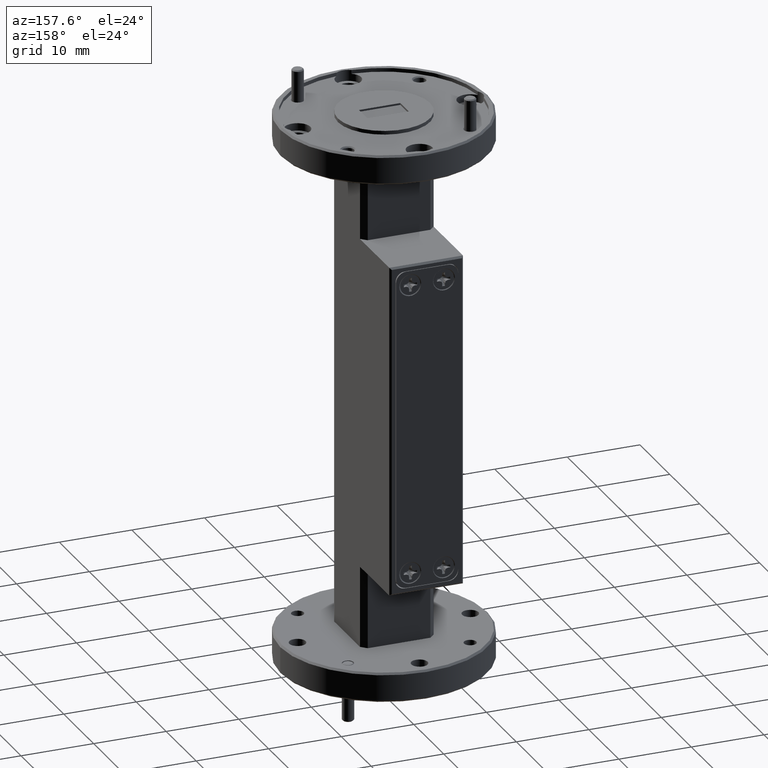
[diagram: clean part render]
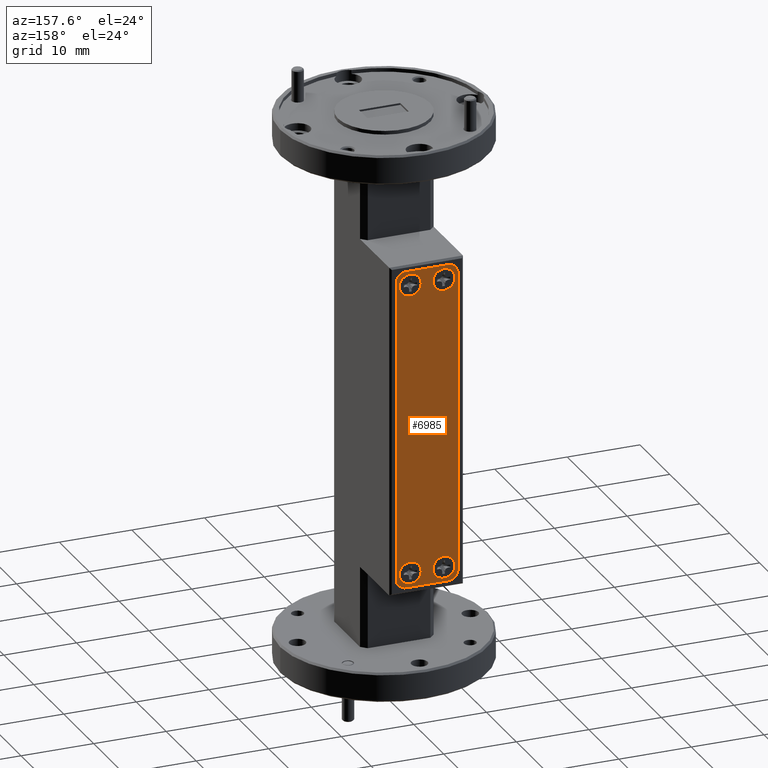
[diagram: same view with one face highlighted and labeled with its STEP entity id]
A machine part, auxiliary view. The second image highlights one B-rep face of the part: STEP entity #6985.
In plain terms, the highlighted planar face has unit normal (-0, -1, -0).
Its self-contained STEP definition (entity closure, byte-faithful):
#29 = VERTEX_POINT ( 'NONE', #5719 ) ;
#74 = CIRCLE ( 'NONE', #5812, 0.05499999999999995864 ) ;
#97 = DIRECTION ( 'NONE',  ( 1.000000000000000000, -8.683306935269172844E-17, 6.635646262502135868E-33 ) ) ;
#119 = CARTESIAN_POINT ( 'NONE',  ( 0.08999999999999976075, 0.5649999999999999467, -0.7899999999999989253 ) ) ;
#170 = CARTESIAN_POINT ( 'NONE',  ( -0.1694999999999998452, 0.5649999999999999467, 0.8129999999999988347 ) ) ;
#201 = CARTESIAN_POINT ( 'NONE',  ( 0.1114999999999998354, 0.5649999999999999467, 0.8679999999999988836 ) ) ;
#234 = EDGE_CURVE ( 'NONE', #9282, #2478, #7194, .T. ) ;
#268 = CIRCLE ( 'NONE', #8255, 0.05949999999999995570 ) ;
#271 = CARTESIAN_POINT ( 'NONE',  ( -0.1144999999999999907, 0.5649999999999999467, -0.8129999999999991678 ) ) ;
#292 = EDGE_CURVE ( 'NONE', #8445, #4648, #5428, .T. ) ;
#373 = AXIS2_PLACEMENT_3D ( 'NONE', #487, #1983, #537 ) ;
#433 = CARTESIAN_POINT ( 'NONE',  ( -0.001500000000000070071, 0.5649999999999999467, 1.373565839176262630E-16 ) ) ;
#446 = DIRECTION ( 'NONE',  ( 8.683306935269165449E-17, 1.000000000000000000, 2.547280781376808225E-17 ) ) ;
#479 = DIRECTION ( 'NONE',  ( -1.000000000000000000, 0.000000000000000000, 0.000000000000000000 ) ) ;
#487 = CARTESIAN_POINT ( 'NONE',  ( -0.09299999999999999933, 0.5649999999999999467, -0.7899999999999989253 ) ) ;
#537 = DIRECTION ( 'NONE',  ( -1.000000000000000000, 0.000000000000000000, 0.000000000000000000 ) ) ;
#595 = VERTEX_POINT ( 'NONE', #9491 ) ;
#710 = DIRECTION ( 'NONE',  ( 8.683306935269165449E-17, 1.000000000000000000, 2.547280781376808225E-17 ) ) ;
#797 = ORIENTED_EDGE ( 'NONE', *, *, #3710, .F. ) ;
#819 = CARTESIAN_POINT ( 'NONE',  ( -0.1694999999999998452, 0.5649999999999999467, -0.8679999999999992166 ) ) ;
#1019 = ORIENTED_EDGE ( 'NONE', *, *, #3092, .T. ) ;
#1220 = VERTEX_POINT ( 'NONE', #7923 ) ;
#1303 = CARTESIAN_POINT ( 'NONE',  ( 0.1114999999999998354, 0.5649999999999999467, -0.8679999999999992166 ) ) ;
#1352 = ORIENTED_EDGE ( 'NONE', *, *, #8147, .T. ) ;
#1490 = LINE ( 'NONE', #2341, #4976 ) ;
#1616 = DIRECTION ( 'NONE',  ( 1.000000000000000000, 0.000000000000000000, 0.000000000000000000 ) ) ;
#1692 = ORIENTED_EDGE ( 'NONE', *, *, #4680, .T. ) ;
#1747 = ORIENTED_EDGE ( 'NONE', *, *, #4713, .F. ) ;
#1763 = ORIENTED_EDGE ( 'NONE', *, *, #4466, .T. ) ;
#1881 = CARTESIAN_POINT ( 'NONE',  ( 0.1114999999999998354, 0.5649999999999999467, -0.8129999999999991678 ) ) ;
#1931 = PLANE ( 'NONE',  #8065 ) ;
#1980 = FACE_BOUND ( 'NONE', #4199, .T. ) ;
#1983 = DIRECTION ( 'NONE',  ( 8.683306935269165449E-17, 1.000000000000000000, 2.547280781376808225E-17 ) ) ;
#2014 = AXIS2_PLACEMENT_3D ( 'NONE', #8483, #5516, #2414 ) ;
#2058 = DIRECTION ( 'NONE',  ( 1.000000000000000000, 0.000000000000000000, 0.000000000000000000 ) ) ;
#2138 = ORIENTED_EDGE ( 'NONE', *, *, #9104, .T. ) ;
#2285 = CIRCLE ( 'NONE', #6443, 0.05949999999999996264 ) ;
#2321 = LINE ( 'NONE', #819, #6028 ) ;
#2341 = CARTESIAN_POINT ( 'NONE',  ( -0.1694999999999998452, 0.5649999999999999467, 0.8679999999999988836 ) ) ;
#2414 = DIRECTION ( 'NONE',  ( 1.000000000000000000, 0.000000000000000000, 0.000000000000000000 ) ) ;
#2478 = VERTEX_POINT ( 'NONE', #5526 ) ;
#2722 = FACE_BOUND ( 'NONE', #7030, .T. ) ;
#2778 = EDGE_CURVE ( 'NONE', #4648, #8445, #268, .T. ) ;
#2825 = EDGE_CURVE ( 'NONE', #5094, #595, #2321, .T. ) ;
#2844 = EDGE_CURVE ( 'NONE', #6451, #1220, #3120, .T. ) ;
#2941 = CARTESIAN_POINT ( 'NONE',  ( 0.1494999999999999107, 0.5649999999999999467, 0.7899999999999992584 ) ) ;
#2984 = CIRCLE ( 'NONE', #7946, 0.05949999999999997652 ) ;
#3023 = ORIENTED_EDGE ( 'NONE', *, *, #2844, .T. ) ;
#3092 = EDGE_CURVE ( 'NONE', #1220, #4329, #5213, .T. ) ;
#3120 = CIRCLE ( 'NONE', #2014, 0.05499999999999994477 ) ;
#3355 = FACE_OUTER_BOUND ( 'NONE', #9208, .T. ) ;
#3357 = DIRECTION ( 'NONE',  ( 8.683306935269165449E-17, 1.000000000000000000, 2.547280781376808225E-17 ) ) ;
#3455 = DIRECTION ( 'NONE',  ( 8.683306935269165449E-17, 1.000000000000000000, 2.547280781376808225E-17 ) ) ;
#3710 = EDGE_CURVE ( 'NONE', #2478, #9282, #7740, .T. ) ;
#3919 = EDGE_CURVE ( 'NONE', #29, #8292, #9004, .T. ) ;
#3980 = AXIS2_PLACEMENT_3D ( 'NONE', #1881, #3455, #9688 ) ;
#4199 = EDGE_LOOP ( 'NONE', ( #4920, #5881 ) ) ;
#4248 = CARTESIAN_POINT ( 'NONE',  ( 0.1664999999999997038, 0.5649999999999999467, -0.8679999999999992166 ) ) ;
#4302 = CIRCLE ( 'NONE', #7989, 0.05949999999999996264 ) ;
#4329 = VERTEX_POINT ( 'NONE', #4331 ) ;
#4331 = CARTESIAN_POINT ( 'NONE',  ( 0.1664999999999997038, 0.5649999999999999467, -0.8129999999999991678 ) ) ;
#4402 = DIRECTION ( 'NONE',  ( -1.000000000000000000, 0.000000000000000000, 0.000000000000000000 ) ) ;
#4427 = VERTEX_POINT ( 'NONE', #7515 ) ;
#4447 = ORIENTED_EDGE ( 'NONE', *, *, #9285, .T. ) ;
#4452 = VERTEX_POINT ( 'NONE', #8356 ) ;
#4466 = EDGE_CURVE ( 'NONE', #4427, #6451, #1490, .T. ) ;
#4510 = DIRECTION ( 'NONE',  ( 6.635646262502133131E-33, -2.547280781376810382E-17, 1.000000000000000000 ) ) ;
#4526 = ORIENTED_EDGE ( 'NONE', *, *, #9623, .F. ) ;
#4561 = CARTESIAN_POINT ( 'NONE',  ( -0.1694999999999998452, 0.5649999999999999467, -0.8679999999999992166 ) ) ;
#4564 = ORIENTED_EDGE ( 'NONE', *, *, #2825, .T. ) ;
#4571 = DIRECTION ( 'NONE',  ( -1.000000000000000000, 8.683306935269172844E-17, -6.635646262502135868E-33 ) ) ;
#4648 = VERTEX_POINT ( 'NONE', #8499 ) ;
#4677 = CARTESIAN_POINT ( 'NONE',  ( -0.1525000000000000522, 0.5649999999999999467, 0.7899999999999992584 ) ) ;
#4680 = EDGE_CURVE ( 'NONE', #4329, #5094, #9419, .T. ) ;
#4683 = AXIS2_PLACEMENT_3D ( 'NONE', #4881, #3357, #8596 ) ;
#4713 = EDGE_CURVE ( 'NONE', #4452, #9590, #4302, .T. ) ;
#4804 = VERTEX_POINT ( 'NONE', #170 ) ;
#4818 = ORIENTED_EDGE ( 'NONE', *, *, #292, .F. ) ;
#4881 = CARTESIAN_POINT ( 'NONE',  ( 0.08999999999999976075, 0.5649999999999999467, -0.7899999999999989253 ) ) ;
#4920 = ORIENTED_EDGE ( 'NONE', *, *, #3919, .F. ) ;
#4971 = DIRECTION ( 'NONE',  ( -8.683306935269171612E-17, -1.000000000000000000, -2.547280781376808225E-17 ) ) ;
#4976 = VECTOR ( 'NONE', #97, 39.37007874015748143 ) ;
#5088 = DIRECTION ( 'NONE',  ( -1.000000000000000000, 0.000000000000000000, 0.000000000000000000 ) ) ;
#5094 = VERTEX_POINT ( 'NONE', #1303 ) ;
#5159 = AXIS2_PLACEMENT_3D ( 'NONE', #9012, #710, #4402 ) ;
#5213 = LINE ( 'NONE', #4248, #5278 ) ;
#5273 = DIRECTION ( 'NONE',  ( -1.000000000000000000, 0.000000000000000000, 0.000000000000000000 ) ) ;
#5278 = VECTOR ( 'NONE', #5811, 39.37007874015748143 ) ;
#5314 = ORIENTED_EDGE ( 'NONE', *, *, #234, .F. ) ;
#5364 = CARTESIAN_POINT ( 'NONE',  ( -0.1144999999999999907, 0.5649999999999999467, 0.8129999999999989457 ) ) ;
#5375 = VECTOR ( 'NONE', #4510, 39.37007874015748143 ) ;
#5428 = CIRCLE ( 'NONE', #5159, 0.05949999999999995570 ) ;
#5512 = EDGE_LOOP ( 'NONE', ( #4818, #6013 ) ) ;
#5516 = DIRECTION ( 'NONE',  ( 8.683306935269165449E-17, 1.000000000000000000, 2.547280781376808225E-17 ) ) ;
#5526 = CARTESIAN_POINT ( 'NONE',  ( 0.03049999999999978423, 0.5649999999999999467, -0.7899999999999989253 ) ) ;
#5602 = CARTESIAN_POINT ( 'NONE',  ( -0.03350000000000005057, 0.5649999999999999467, -0.7899999999999989253 ) ) ;
#5614 = DIRECTION ( 'NONE',  ( -1.000000000000000000, 0.000000000000000000, 0.000000000000000000 ) ) ;
#5719 = CARTESIAN_POINT ( 'NONE',  ( -0.1524999999999999689, 0.5649999999999999467, -0.7899999999999989253 ) ) ;
#5781 = FACE_BOUND ( 'NONE', #5512, .T. ) ;
#5811 = DIRECTION ( 'NONE',  ( -6.635646262502133131E-33, 2.547280781376810382E-17, -1.000000000000000000 ) ) ;
#5812 = AXIS2_PLACEMENT_3D ( 'NONE', #271, #8122, #2058 ) ;
#5881 = ORIENTED_EDGE ( 'NONE', *, *, #7789, .F. ) ;
#6013 = ORIENTED_EDGE ( 'NONE', *, *, #2778, .F. ) ;
#6028 = VECTOR ( 'NONE', #4571, 39.37007874015748143 ) ;
#6038 = CARTESIAN_POINT ( 'NONE',  ( -0.09300000000000009648, 0.5649999999999999467, 0.7899999999999992584 ) ) ;
#6060 = CARTESIAN_POINT ( 'NONE',  ( -0.1694999999999998452, 0.5649999999999999467, -0.8129999999999991678 ) ) ;
#6121 = LINE ( 'NONE', #4561, #5375 ) ;
#6226 = DIRECTION ( 'NONE',  ( -1.000000000000000000, 0.000000000000000000, 0.000000000000000000 ) ) ;
#6283 = AXIS2_PLACEMENT_3D ( 'NONE', #5364, #8373, #1616 ) ;
#6443 = AXIS2_PLACEMENT_3D ( 'NONE', #7316, #446, #5088 ) ;
#6451 = VERTEX_POINT ( 'NONE', #201 ) ;
#6802 = VERTEX_POINT ( 'NONE', #6060 ) ;
#6985 = ADVANCED_FACE ( 'NONE', ( #3355, #1980, #5781, #2722, #8882 ), #1931, .F. ) ;
#7030 = EDGE_LOOP ( 'NONE', ( #1747, #4526 ) ) ;
#7092 = CIRCLE ( 'NONE', #6283, 0.05499999999999995864 ) ;
#7128 = DIRECTION ( 'NONE',  ( 8.683306935269165449E-17, 1.000000000000000000, 2.547280781376808225E-17 ) ) ;
#7194 = CIRCLE ( 'NONE', #8939, 0.05949999999999996264 ) ;
#7316 = CARTESIAN_POINT ( 'NONE',  ( 0.08999999999999994116, 0.5649999999999999467, 0.7899999999999992584 ) ) ;
#7515 = CARTESIAN_POINT ( 'NONE',  ( -0.1144999999999999907, 0.5649999999999999467, 0.8679999999999988836 ) ) ;
#7740 = CIRCLE ( 'NONE', #4683, 0.05949999999999996264 ) ;
#7789 = EDGE_CURVE ( 'NONE', #8292, #29, #2984, .T. ) ;
#7923 = CARTESIAN_POINT ( 'NONE',  ( 0.1664999999999997038, 0.5649999999999998357, 0.8129999999999985016 ) ) ;
#7946 = AXIS2_PLACEMENT_3D ( 'NONE', #7971, #7128, #5614 ) ;
#7971 = CARTESIAN_POINT ( 'NONE',  ( -0.09299999999999999933, 0.5649999999999999467, -0.7899999999999989253 ) ) ;
#7989 = AXIS2_PLACEMENT_3D ( 'NONE', #8138, #7991, #479 ) ;
#7991 = DIRECTION ( 'NONE',  ( 8.683306935269165449E-17, 1.000000000000000000, 2.547280781376808225E-17 ) ) ;
#8040 = DIRECTION ( 'NONE',  ( 1.000000000000000000, -8.683306935269171612E-17, 6.635646262502134500E-33 ) ) ;
#8065 = AXIS2_PLACEMENT_3D ( 'NONE', #433, #4971, #8040 ) ;
#8122 = DIRECTION ( 'NONE',  ( 8.683306935269165449E-17, 1.000000000000000000, 2.547280781376808225E-17 ) ) ;
#8138 = CARTESIAN_POINT ( 'NONE',  ( 0.08999999999999994116, 0.5649999999999999467, 0.7899999999999992584 ) ) ;
#8147 = EDGE_CURVE ( 'NONE', #6802, #4804, #6121, .T. ) ;
#8255 = AXIS2_PLACEMENT_3D ( 'NONE', #6038, #9080, #5273 ) ;
#8292 = VERTEX_POINT ( 'NONE', #5602 ) ;
#8356 = CARTESIAN_POINT ( 'NONE',  ( 0.03049999999999997158, 0.5649999999999999467, 0.7899999999999992584 ) ) ;
#8373 = DIRECTION ( 'NONE',  ( 8.683306935269165449E-17, 1.000000000000000000, 2.547280781376808225E-17 ) ) ;
#8422 = CARTESIAN_POINT ( 'NONE',  ( 0.1494999999999997164, 0.5649999999999999467, -0.7899999999999989253 ) ) ;
#8445 = VERTEX_POINT ( 'NONE', #4677 ) ;
#8483 = CARTESIAN_POINT ( 'NONE',  ( 0.1114999999999998354, 0.5649999999999999467, 0.8129999999999985016 ) ) ;
#8499 = CARTESIAN_POINT ( 'NONE',  ( -0.03350000000000013384, 0.5649999999999999467, 0.7899999999999992584 ) ) ;
#8567 = DIRECTION ( 'NONE',  ( 8.683306935269165449E-17, 1.000000000000000000, 2.547280781376808225E-17 ) ) ;
#8596 = DIRECTION ( 'NONE',  ( -1.000000000000000000, 0.000000000000000000, 0.000000000000000000 ) ) ;
#8882 = FACE_BOUND ( 'NONE', #8890, .T. ) ;
#8890 = EDGE_LOOP ( 'NONE', ( #797, #5314 ) ) ;
#8939 = AXIS2_PLACEMENT_3D ( 'NONE', #119, #8567, #6226 ) ;
#9004 = CIRCLE ( 'NONE', #373, 0.05949999999999997652 ) ;
#9012 = CARTESIAN_POINT ( 'NONE',  ( -0.09300000000000009648, 0.5649999999999999467, 0.7899999999999992584 ) ) ;
#9080 = DIRECTION ( 'NONE',  ( 8.683306935269165449E-17, 1.000000000000000000, 2.547280781376808225E-17 ) ) ;
#9104 = EDGE_CURVE ( 'NONE', #595, #6802, #74, .T. ) ;
#9208 = EDGE_LOOP ( 'NONE', ( #1763, #3023, #1019, #1692, #4564, #2138, #1352, #4447 ) ) ;
#9282 = VERTEX_POINT ( 'NONE', #8422 ) ;
#9285 = EDGE_CURVE ( 'NONE', #4804, #4427, #7092, .T. ) ;
#9419 = CIRCLE ( 'NONE', #3980, 0.05499999999999994477 ) ;
#9491 = CARTESIAN_POINT ( 'NONE',  ( -0.1144999999999999907, 0.5649999999999999467, -0.8679999999999992166 ) ) ;
#9590 = VERTEX_POINT ( 'NONE', #2941 ) ;
#9623 = EDGE_CURVE ( 'NONE', #9590, #4452, #2285, .T. ) ;
#9688 = DIRECTION ( 'NONE',  ( 1.000000000000000000, 0.000000000000000000, 0.000000000000000000 ) ) ;